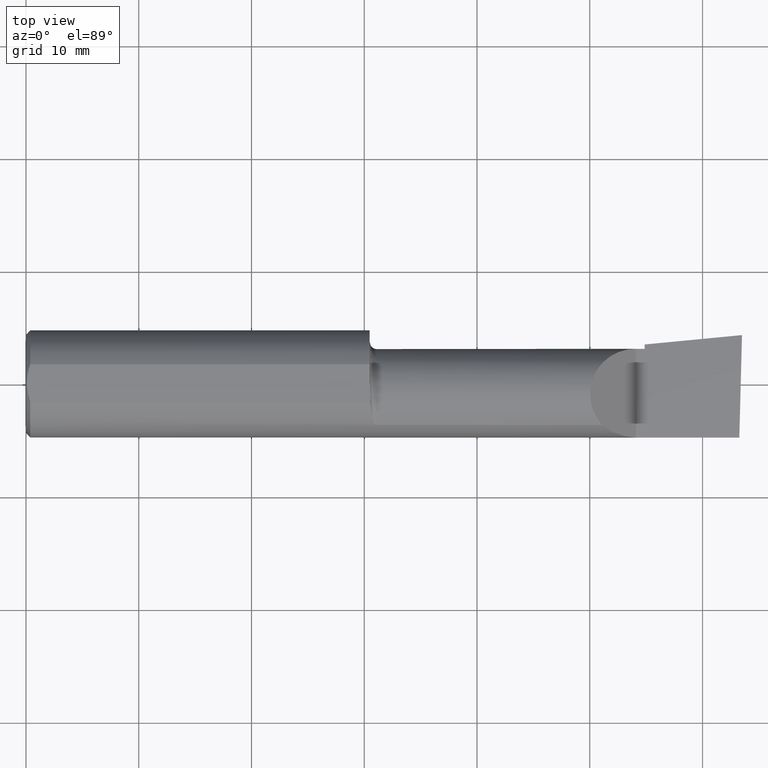
[diagram: clean part render]
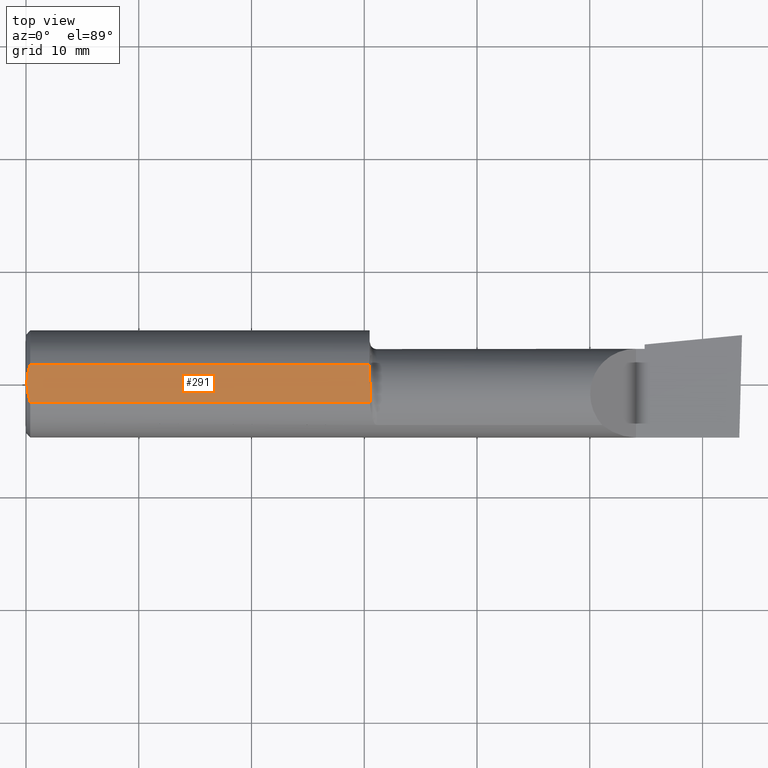
[diagram: same view with one face highlighted and labeled with its STEP entity id]
A machine part, top view. The second image highlights one B-rep face of the part: STEP entity #291.
In plain terms, the highlighted planar face has unit normal (0, -0, -1).
Its self-contained STEP definition (entity closure, byte-faithful):
#23 = CARTESIAN_POINT ( 'NONE',  ( 1.201790586316525022, -0.05136925160306193144, 0.1753499999999999781 ) ) ;
#28 = CARTESIAN_POINT ( 'NONE',  ( 1.199999999999999956, 0.06597272163553663527, 0.1753499999999999781 ) ) ;
#29 = ORIENTED_EDGE ( 'NONE', *, *, #90, .F. ) ;
#34 = VERTEX_POINT ( 'NONE', #490 ) ;
#40 = B_SPLINE_CURVE_WITH_KNOTS ( 'NONE', 3,
 ( #117, #263, #171, #561, #111, #557, #369, #23, #311, #314 ),
 .UNSPECIFIED., .F., .F.,
 ( 4, 2, 2, 2, 4 ),
 ( 0.01227444304810798928, 0.01283060897602172207, 0.01338677490393545486, 0.01394294083184918764, 0.01449910675976292043 ),
 .UNSPECIFIED. ) ;
#66 = CARTESIAN_POINT ( 'NONE',  ( 0.01499999999999997863, -0.06597272163553657975, 0.1753499999999999781 ) ) ;
#67 = B_SPLINE_CURVE_WITH_KNOTS ( 'NONE', 3,
 ( #260, #459, #211, #611, #164, #511 ),
 .UNSPECIFIED., .F., .F.,
 ( 4, 2, 4 ),
 ( 0.003480013901590607410, 0.004330767971208083697, 0.005181522040825559984 ),
 .UNSPECIFIED. ) ;
#71 = LINE ( 'NONE', #418, #594 ) ;
#83 = FACE_OUTER_BOUND ( 'NONE', #376, .T. ) ;
#90 = EDGE_CURVE ( 'NONE', #335, #584, #71, .T. ) ;
#111 = CARTESIAN_POINT ( 'NONE',  ( 1.201446793517543243, -0.01487494471388409178, 0.1753500000000000059 ) ) ;
#116 = EDGE_CURVE ( 'NONE', #319, #34, #181, .T. ) ;
#117 = CARTESIAN_POINT ( 'NONE',  ( 1.199999999999999956, 0.02172596722253220328, 0.1753499999999999781 ) ) ;
#127 = CARTESIAN_POINT ( 'NONE',  ( 0.01499999999999997863, -0.06597272163553657975, 0.1753499999999999781 ) ) ;
#164 = CARTESIAN_POINT ( 'NONE',  ( 0.01125230581755086272, 0.05532998191409922023, 0.1753500000000000059 ) ) ;
#165 = DIRECTION ( 'NONE',  ( 1.000000000000000000, 0.000000000000000000, 0.000000000000000000 ) ) ;
#171 = CARTESIAN_POINT ( 'NONE',  ( 1.200322286002908134, 0.007053356780979112318, 0.1753499999999999781 ) ) ;
#181 = B_SPLINE_CURVE_WITH_KNOTS ( 'NONE', 3,
 ( #66, #457, #257, #609, #212, #618 ),
 .UNSPECIFIED., .F., .F.,
 ( 4, 2, 4 ),
 ( 0.001779942938356815062, 0.002629978419973711019, 0.003480013901590607410 ),
 .UNSPECIFIED. ) ;
#182 = ORIENTED_EDGE ( 'NONE', *, *, #577, .F. ) ;
#211 = CARTESIAN_POINT ( 'NONE',  ( 0.004115035183746292881, 0.02255629470626744487, 0.1753499999999999781 ) ) ;
#212 = CARTESIAN_POINT ( 'NONE',  ( 0.003000000000000172667, -0.01126410975715121283, 0.1753500000000000059 ) ) ;
#223 = DIRECTION ( 'NONE',  ( 0.000000000000000000, 1.000000000000000000, -1.438723400918613551E-16 ) ) ;
#257 = CARTESIAN_POINT ( 'NONE',  ( 0.008227791779583789808, -0.04447712204611815878, 0.1753499999999999781 ) ) ;
#260 = CARTESIAN_POINT ( 'NONE',  ( 0.003000000000000218638, 2.334609556160449697E-17, 0.1753499999999999781 ) ) ;
#263 = CARTESIAN_POINT ( 'NONE',  ( 1.199999999999999734, 0.01439074984011793311, 0.1753499999999999781 ) ) ;
#291 = ADVANCED_FACE ( 'NONE', ( #83 ), #621, .F. ) ;
#311 = CARTESIAN_POINT ( 'NONE',  ( 1.201479449616799977, -0.05867400124853454357, 0.1753500000000000059 ) ) ;
#314 = CARTESIAN_POINT ( 'NONE',  ( 1.201116380138691264, -0.06597272163553657975, 0.1753499999999999781 ) ) ;
#319 = VERTEX_POINT ( 'NONE', #127 ) ;
#335 = VERTEX_POINT ( 'NONE', #472 ) ;
#343 = ORIENTED_EDGE ( 'NONE', *, *, #506, .F. ) ;
#350 = VECTOR ( 'NONE', #413, 39.37007874015748143 ) ;
#369 = CARTESIAN_POINT ( 'NONE',  ( 1.202020598872754364, -0.03676412395315003384, 0.1753500000000000059 ) ) ;
#376 = EDGE_LOOP ( 'NONE', ( #182, #343, #29, #473, #632, #419 ) ) ;
#397 = LINE ( 'NONE', #489, #571 ) ;
#413 = DIRECTION ( 'NONE',  ( -6.829619984160658046E-18, -1.000000000000000000, 1.438723400918613551E-16 ) ) ;
#418 = CARTESIAN_POINT ( 'NONE',  ( 0.000000000000000000, 0.06597272163553663527, 0.1753499999999999781 ) ) ;
#419 = ORIENTED_EDGE ( 'NONE', *, *, #433, .F. ) ;
#433 = EDGE_CURVE ( 'NONE', #483, #319, #397, .T. ) ;
#455 = AXIS2_PLACEMENT_3D ( 'NONE', #485, #475, #223 ) ;
#457 = CARTESIAN_POINT ( 'NONE',  ( 0.01128414053810044941, -0.05542038647445821781, 0.1753499999999999781 ) ) ;
#459 = CARTESIAN_POINT ( 'NONE',  ( 0.003000000000000169632, 0.01127363201155560934, 0.1753499999999999781 ) ) ;
#472 = CARTESIAN_POINT ( 'NONE',  ( 0.01499999999999999424, 0.06597272163553663527, 0.1753499999999999781 ) ) ;
#473 = ORIENTED_EDGE ( 'NONE', *, *, #605, .F. ) ;
#475 = DIRECTION ( 'NONE',  ( 0.000000000000000000, -1.438723400918613551E-16, -1.000000000000000000 ) ) ;
#483 = VERTEX_POINT ( 'NONE', #500 ) ;
#485 = CARTESIAN_POINT ( 'NONE',  ( 2.500000000000000000, 0.2373500000000000332, 0.1753499999999999504 ) ) ;
#489 = CARTESIAN_POINT ( 'NONE',  ( 0.000000000000000000, -0.06597272163553657975, 0.1753499999999999781 ) ) ;
#490 = CARTESIAN_POINT ( 'NONE',  ( 0.003000000000000218638, 2.334609556160449697E-17, 0.1753499999999999781 ) ) ;
#493 = DIRECTION ( 'NONE',  ( -1.000000000000000000, -0.000000000000000000, -0.000000000000000000 ) ) ;
#500 = CARTESIAN_POINT ( 'NONE',  ( 1.201116380138691264, -0.06597272163553657975, 0.1753499999999999781 ) ) ;
#506 = EDGE_CURVE ( 'NONE', #584, #534, #616, .T. ) ;
#508 = CARTESIAN_POINT ( 'NONE',  ( 1.199999999999999956, 0.02172596722253220328, 0.1753499999999999781 ) ) ;
#511 = CARTESIAN_POINT ( 'NONE',  ( 0.01499999999999999424, 0.06597272163553663527, 0.1753499999999999781 ) ) ;
#534 = VERTEX_POINT ( 'NONE', #508 ) ;
#557 = CARTESIAN_POINT ( 'NONE',  ( 1.201936435452952034, -0.02946557294850781980, 0.1753499999999999504 ) ) ;
#561 = CARTESIAN_POINT ( 'NONE',  ( 1.201049074448707232, -0.007621984361076264425, 0.1753499999999999504 ) ) ;
#567 = CARTESIAN_POINT ( 'NONE',  ( 1.199999999999999956, 0.2373500000000000332, 0.1753499999999999504 ) ) ;
#571 = VECTOR ( 'NONE', #493, 39.37007874015748143 ) ;
#577 = EDGE_CURVE ( 'NONE', #534, #483, #40, .T. ) ;
#584 = VERTEX_POINT ( 'NONE', #28 ) ;
#594 = VECTOR ( 'NONE', #165, 39.37007874015748143 ) ;
#605 = EDGE_CURVE ( 'NONE', #34, #335, #67, .T. ) ;
#609 = CARTESIAN_POINT ( 'NONE',  ( 0.004093196532652216939, -0.02240707710020816909, 0.1753499999999999504 ) ) ;
#611 = CARTESIAN_POINT ( 'NONE',  ( 0.008244775919947424855, 0.04453482769755855164, 0.1753499999999999504 ) ) ;
#616 = LINE ( 'NONE', #567, #350 ) ;
#618 = CARTESIAN_POINT ( 'NONE',  ( 0.003000000000000218638, 2.334609556160449697E-17, 0.1753499999999999781 ) ) ;
#621 = PLANE ( 'NONE',  #455 ) ;
#632 = ORIENTED_EDGE ( 'NONE', *, *, #116, .F. ) ;